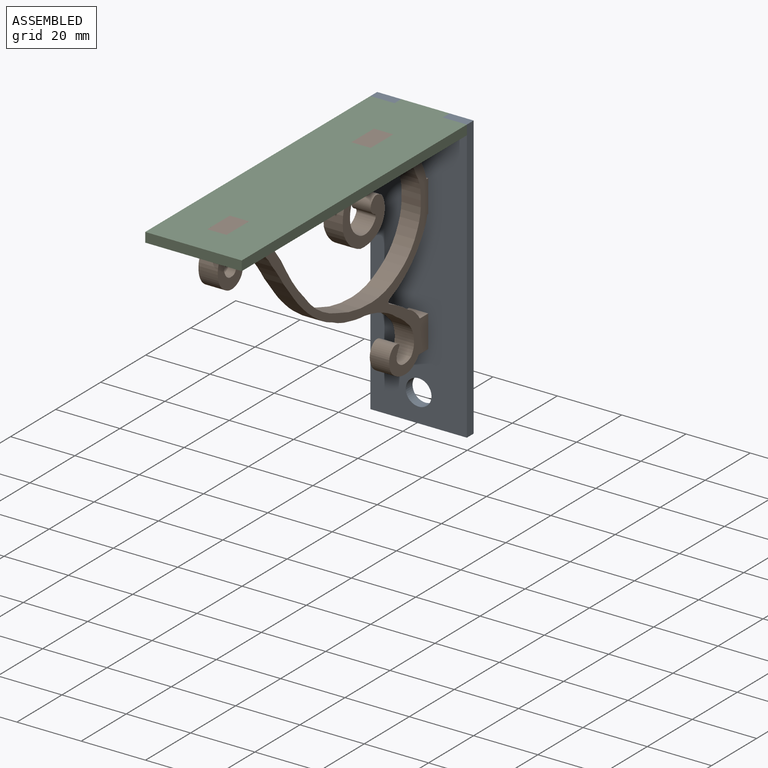
[diagram: assembled view]
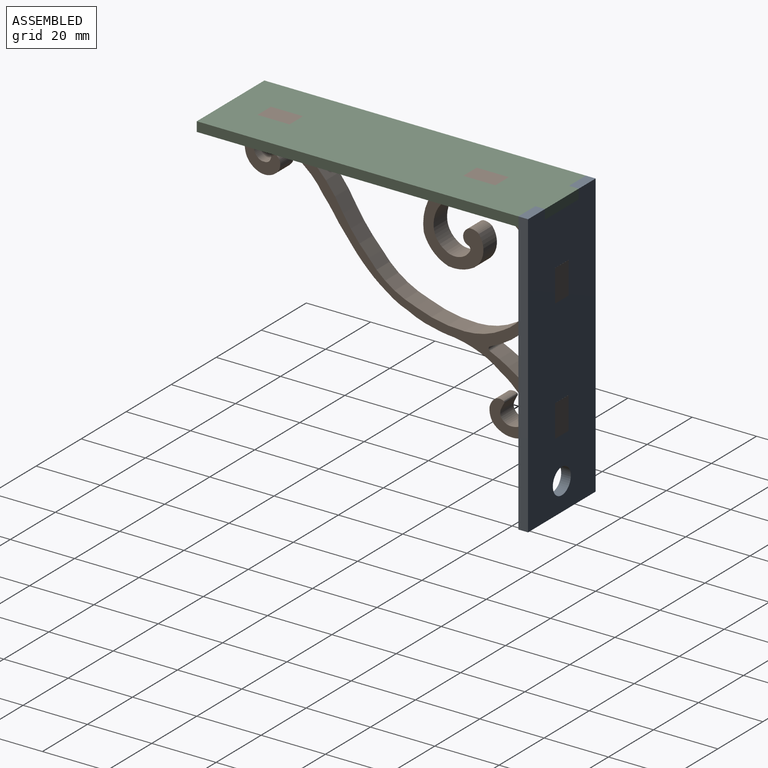
[diagram: assembled view, second angle]
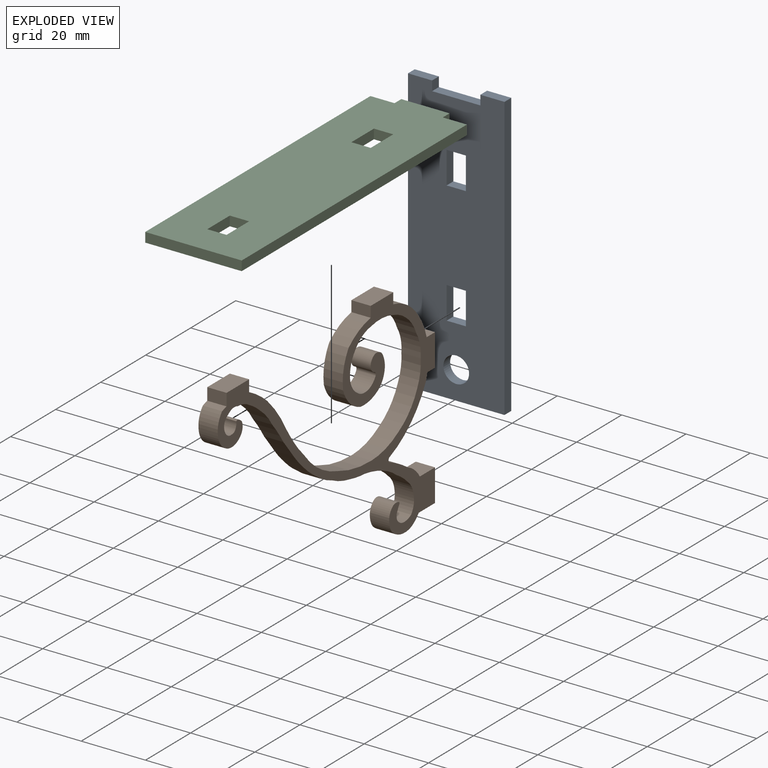
[diagram: exploded view]
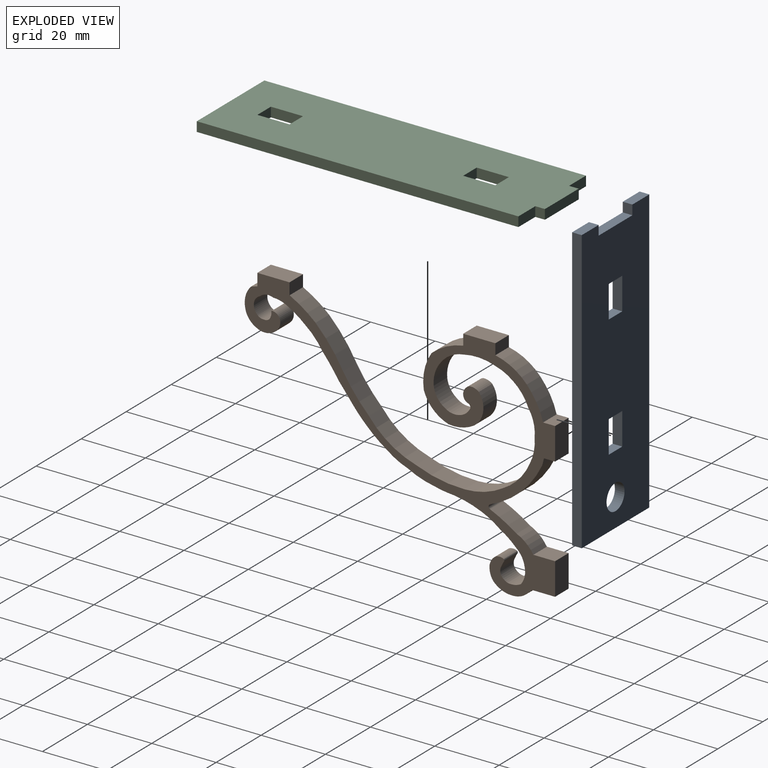
[diagram: exploded view, second angle]
ASSEMBLY  parts=3 mates=2
PART A: 19 faces, bbox 30x3x88 mm
  f0: plane 6x3mm, normal (0,0,-1), area 18mm2, adj f1,f16,f17,f18
  f1: plane 10x3mm, normal (-1,0,0), area 30mm2, adj f0,f2,f17,f18
  f2: plane 6x3mm, normal (0,0,1), area 18mm2, adj f1,f16,f17,f18
  f3: plane 10x3mm, normal (-1,0,0), area 30mm2, adj f4,f14,f17,f18
  f4: plane 6x3mm, normal (0,0,1), area 18mm2, adj f3,f5,f17,f18
  f5: plane 10x3mm, normal (1,0,0), area 30mm2, adj f4,f14,f17,f18
  f6: plane 88x3mm, normal (-1,0,0), area 264mm2, adj f7,f15,f17,f18
  f7: plane 30x3mm, normal (0,0,-1), area 90mm2, adj f6,f8,f17,f18
  f8: plane 88x3mm, normal (1,0,0), area 264mm2, adj f7,f9,f17,f18
  f9: plane 7.5x3mm, normal (0,0,1), area 22.5mm2, adj f8,f10,f17,f18
  f10: plane 3x3mm, normal (-1,0,0), area 9mm2, adj f9,f11,f17,f18
  f11: plane 15x3mm, normal (0,0,1), area 45mm2, adj f10,f12,f17,f18
  f12: plane 3x3mm, normal (1,0,0), area 9mm2, adj f11,f15,f17,f18
  f13: cylinder r=4mm len=8mm, axis (0,1,0), area 75.4mm2, adj f17,f18
  f14: plane 6x3mm, normal (0,0,-1), area 18mm2, adj f3,f5,f17,f18
  f15: plane 7.5x3mm, normal (0,0,1), area 22.5mm2, adj f6,f12,f17,f18
  f16: plane 10x3mm, normal (1,0,0), area 30mm2, adj f0,f2,f17,f18
  f17: plane 88x30mm, normal (0,-1,0), area 2424.7mm2, adj f0,f1,f2,f3,f4,f5,f6,f7
  f18: plane 88x30mm, normal (0,1,0), area 2424.7mm2, adj f0,f1,f2,f3,f4,f5,f6,f7
PART B: 87 faces, bbox 96.5x6x69.5 mm
  f0: cylinder r=3.02mm len=6mm, axis (0,1,0), area 20mm2, adj f1,f84,f85,f86
  f1: cylinder r=3.58mm len=6mm, axis (0,1,0), area 17.4mm2, adj f0,f2,f85,f86
  f2: cylinder r=2.53mm len=6mm, axis (0,1,0), area 15.6mm2, adj f1,f3,f85,f86
  f3: cylinder r=1.84mm len=6mm, axis (0,1,0), area 15.2mm2, adj f2,f4,f85,f86
  f4: cylinder r=2.82mm len=6mm, axis (0,1,0), area 10.2mm2, adj f3,f5,f85,f86
  f5: cylinder r=0.4mm len=6mm, axis (0,1,0), area 3.6mm2, adj f4,f6,f85,f86
  f6: cylinder r=2.93mm len=6mm, axis (0,1,0), area 15.1mm2, adj f5,f7,f85,f86
  f7: cylinder r=3.36mm len=6mm, axis (0,1,0), area 21.8mm2, adj f6,f8,f85,f86
  f8: cylinder r=5.3mm len=6.89mm, axis (0,1,0), area 45.8mm2, adj f7,f9,f85,f86
  f9: cylinder r=6.26mm len=6mm, axis (0,1,0), area 35.3mm2, adj f8,f10,f85,f86
  f10: cylinder r=7.24mm len=6.37mm, axis (0,1,0), area 41.3mm2, adj f9,f11,f85,f86
  f11: cylinder r=25.53mm len=6mm, axis (0,1,0), area 12.5mm2, adj f10,f12,f85,f86
  f12: plane 6x3.81mm, normal (1,0,0), area 22.9mm2, adj f11,f13,f85,f86
  f13: plane 10x6mm, normal (0,0,1), area 60mm2, adj f12,f14,f85,f86
  f14: plane 6x3.63mm, normal (-1,0,0), area 21.8mm2, adj f13,f15,f85,f86
  f15: cylinder r=35.56mm len=8.1mm, axis (0,1,0), area 59.2mm2, adj f14,f16,f85,f86
  f16: cylinder r=48.89mm len=11.32mm, axis (0,1,0), area 85.3mm2, adj f15,f17,f85,f86
  f17: cylinder r=54.44mm len=10.42mm, axis (0,1,0), area 79.2mm2, adj f16,f18,f85,f86
  f18: cylinder r=28.11mm len=14.51mm, axis (0,1,0), area 106.9mm2, adj f17,f19,f85,f86
  f19: cylinder r=38.96mm len=15.18mm, axis (0,1,0), area 93.3mm2, adj f18,f20,f85,f86
  f20: cylinder r=22.97mm len=12.03mm, axis (0,1,0), area 76.2mm2, adj f19,f21,f85,f86
  f21: cylinder r=19.05mm len=9.14mm, axis (0,1,0), area 75.6mm2, adj f20,f22,f85,f86
  f22: cylinder r=14.69mm len=7.71mm, axis (0,1,0), area 47.7mm2, adj f21,f23,f85,f86
  f23: cylinder r=12.14mm len=7.84mm, axis (0,1,0), area 49.5mm2, adj f22,f24,f85,f86
  f24: cylinder r=14.36mm len=6.19mm, axis (0,1,0), area 47.1mm2, adj f23,f25,f85,f86
  f25: cylinder r=14.33mm len=6mm, axis (0,1,0), area 37.7mm2, adj f24,f26,f85,f86
  f26: cylinder r=17.55mm len=9.97mm, axis (0,1,0), area 60.7mm2, adj f25,f27,f85,f86
  f27: cylinder r=10.2mm len=6.97mm, axis (0,1,0), area 49.8mm2, adj f26,f28,f85,f86
  f28: cylinder r=9.82mm len=7.17mm, axis (0,1,0), area 46.3mm2, adj f27,f29,f85,f86
  f29: cylinder r=7.02mm len=6mm, axis (0,1,0), area 38.2mm2, adj f28,f30,f85,f86
  f30: cylinder r=5.29mm len=6mm, axis (0,1,0), area 28mm2, adj f29,f31,f85,f86
  f31: cylinder r=5.18mm len=6mm, axis (0,1,0), area 28mm2, adj f30,f32,f85,f86
  f32: cylinder r=0.97mm len=6mm, axis (0,1,0), area 9.1mm2, adj f31,f33,f85,f86
  f33: cylinder r=2.74mm len=6mm, axis (0,1,0), area 9.9mm2, adj f32,f34,f85,f86
  f34: cylinder r=2.65mm len=6mm, axis (0,1,0), area 15.6mm2, adj f33,f35,f85,f86
  f35: cylinder r=3.19mm len=6mm, axis (0,1,0), area 14.7mm2, adj f34,f36,f85,f86
  f36: cylinder r=3.98mm len=6mm, axis (0,1,0), area 18.3mm2, adj f35,f37,f85,f86
  f37: cylinder r=6.9mm len=9.84mm, axis (0,1,0), area 66.7mm2, adj f36,f38,f85,f86
  f38: cylinder r=11.76mm len=7.99mm, axis (0,1,0), area 50.1mm2, adj f37,f39,f85,f86
  f39: cylinder r=11.64mm len=7.66mm, axis (0,1,0), area 67.2mm2, adj f38,f40,f85,f86
  f40: cylinder r=15.7mm len=11mm, axis (0,1,0), area 69.2mm2, adj f39,f41,f85,f86
  f41: cylinder r=19.43mm len=9.83mm, axis (0,1,0), area 66.3mm2, adj f40,f42,f85,f86
  f42: plane 6x3.35mm, normal (1,0,0), area 20.1mm2, adj f41,f43,f85,f86
  f43: plane 10x6mm, normal (0,0,1), area 60mm2, adj f42,f44,f85,f86
  f44: plane 6x3.37mm, normal (-1,0,0), area 20.2mm2, adj f43,f45,f85,f86
  f45: cylinder r=18.04mm len=11.2mm, axis (0,1,0), area 82.5mm2, adj f44,f46,f85,f86
  f46: cylinder r=21.74mm len=7.52mm, axis (0,1,0), area 50.5mm2, adj f45,f47,f85,f86
  f47: plane 6x3.72mm, normal (0,0,1), area 22.3mm2, adj f46,f48,f85,f86
  f48: plane 10x6mm, normal (-1,0,0), area 60mm2, adj f47,f49,f85,f86
  f49: plane 6x3.46mm, normal (0,0,-1), area 20.7mm2, adj f48,f50,f85,f86
  f50: cylinder r=21.74mm len=6mm, axis (0,1,0), area 14mm2, adj f49,f51,f85,f86
  f51: cylinder r=30.22mm len=16.17mm, axis (0,1,0), area 136.2mm2, adj f50,f52,f85,f86
  f52: cylinder r=0.77mm len=6mm, axis (0,1,0), area 10.3mm2, adj f51,f53,f85,f86
  f53: cylinder r=46.53mm len=8.26mm, axis (0,1,0), area 57mm2, adj f52,f54,f85,f86
  f54: cylinder r=11.56mm len=6mm, axis (0,1,0), area 42.1mm2, adj f53,f55,f85,f86
  f55: plane 6.76x6mm, normal (0,0,1), area 40.5mm2, adj f54,f56,f85,f86
  f56: plane 10x6mm, normal (-1,0,0), area 60mm2, adj f55,f57,f85,f86
  f57: plane 7.24x6mm, normal (0,0,-1), area 43.5mm2, adj f56,f58,f85,f86
  f58: cylinder r=8.72mm len=6mm, axis (0,1,0), area 13.3mm2, adj f57,f59,f85,f86
  f59: cylinder r=6.6mm len=6mm, axis (0,1,0), area 30mm2, adj f58,f60,f85,f86
  f60: cylinder r=7.92mm len=6mm, axis (0,1,0), area 38.1mm2, adj f59,f61,f85,f86
  f61: cylinder r=6mm len=6mm, axis (0,1,0), area 27.9mm2, adj f60,f62,f85,f86
  f62: cylinder r=4.49mm len=6mm, axis (0,1,0), area 20.8mm2, adj f61,f63,f85,f86
  f63: cylinder r=2.82mm len=6mm, axis (0,1,0), area 16.1mm2, adj f62,f64,f85,f86
  f64: cylinder r=0.59mm len=6mm, axis (0,1,0), area 5.3mm2, adj f63,f65,f85,f86
  f65: cylinder r=4.56mm len=6mm, axis (0,1,0), area 7.8mm2, adj f64,f66,f85,f86
  f66: cylinder r=2.98mm len=6mm, axis (0,1,0), area 17.1mm2, adj f65,f67,f85,f86
  f67: cylinder r=3.93mm len=6mm, axis (0,1,0), area 16.4mm2, adj f66,f68,f85,f86
  f68: cylinder r=5.7mm len=6mm, axis (0,1,0), area 26.1mm2, adj f67,f69,f85,f86
  f69: cylinder r=5.96mm len=6mm, axis (0,1,0), area 31.6mm2, adj f68,f70,f85,f86
  f70: cylinder r=7.36mm len=6mm, axis (0,1,0), area 33.7mm2, adj f69,f71,f85,f86
  f71: cylinder r=23.86mm len=6mm, axis (0,1,0), area 38.9mm2, adj f70,f72,f85,f86
  f72: cylinder r=22.67mm len=6mm, axis (0,1,0), area 39.2mm2, adj f71,f73,f85,f86
  f73: cylinder r=33.27mm len=8.48mm, axis (0,1,0), area 52.9mm2, adj f72,f74,f85,f86
  f74: cylinder r=33.41mm len=6.47mm, axis (0,1,0), area 39.3mm2, adj f73,f75,f85,f86
  f75: cylinder r=26.21mm len=7.96mm, axis (0,1,0), area 50.7mm2, adj f74,f76,f85,f86
  f76: cylinder r=21.95mm len=6.73mm, axis (0,1,0), area 46.1mm2, adj f75,f77,f85,f86
  f77: cylinder r=35.97mm len=6mm, axis (0,1,0), area 45mm2, adj f76,f78,f85,f86
  f78: cylinder r=45.38mm len=6mm, axis (0,1,0), area 39.4mm2, adj f77,f79,f85,f86
  f79: cylinder r=372mm len=6mm, axis (0,1,0), area 45mm2, adj f78,f80,f85,f86
  f80: cylinder r=61.07mm len=6.73mm, axis (0,1,0), area 50.1mm2, adj f79,f81,f85,f86
  f81: cylinder r=22.76mm len=6.25mm, axis (0,1,0), area 50.8mm2, adj f80,f82,f85,f86
  f82: cylinder r=24.57mm len=6mm, axis (0,1,0), area 35mm2, adj f81,f83,f85,f86
  f83: cylinder r=9.11mm len=6mm, axis (0,1,0), area 31.6mm2, adj f82,f84,f85,f86
  f84: cylinder r=3.91mm len=6mm, axis (0,1,0), area 27.1mm2, adj f0,f83,f85,f86
  f85: plane 96.52x69.5mm, normal (0,-1,0), area 949.6mm2, adj f0,f1,f2,f3,f4,f5,f6,f7
  f86: plane 96.52x69.5mm, normal (0,1,0), area 949.6mm2, adj f0,f1,f2,f3,f4,f5,f6,f7
PART C: 18 faces, bbox 30x3x103 mm
  f0: plane 6x3mm, normal (0,0,-1), area 18mm2, adj f1,f15,f16,f17
  f1: plane 10x3mm, normal (-1,0,0), area 30mm2, adj f0,f2,f16,f17
  f2: plane 6x3mm, normal (0,0,1), area 18mm2, adj f1,f15,f16,f17
  f3: plane 10x3mm, normal (-1,0,0), area 30mm2, adj f4,f13,f16,f17
  f4: plane 6x3mm, normal (0,0,1), area 18mm2, adj f3,f5,f16,f17
  f5: plane 10x3mm, normal (1,0,0), area 30mm2, adj f4,f13,f16,f17
  f6: plane 7.5x3mm, normal (0,0,1), area 22.5mm2, adj f7,f14,f16,f17
  f7: plane 100x3mm, normal (-1,0,0), area 300mm2, adj f6,f8,f16,f17
  f8: plane 30x3mm, normal (0,0,-1), area 90mm2, adj f7,f9,f16,f17
  f9: plane 100x3mm, normal (1,0,0), area 300mm2, adj f8,f10,f16,f17
  f10: plane 7.5x3mm, normal (0,0,1), area 22.5mm2, adj f9,f11,f16,f17
  f11: plane 3x3mm, normal (1,0,0), area 9mm2, adj f10,f12,f16,f17
  f12: plane 15x3mm, normal (0,0,1), area 45mm2, adj f11,f14,f16,f17
  f13: plane 6x3mm, normal (0,0,-1), area 18mm2, adj f3,f5,f16,f17
  f14: plane 3x3mm, normal (-1,0,0), area 9mm2, adj f6,f12,f16,f17
  f15: plane 10x3mm, normal (1,0,0), area 30mm2, adj f0,f2,f16,f17
  f16: plane 103x30mm, normal (0,-1,0), area 2925mm2, adj f0,f1,f2,f3,f4,f5,f6,f7
  f17: plane 103x30mm, normal (0,1,0), area 2925mm2, adj f0,f1,f2,f3,f4,f5,f6,f7
PLACE A at identity
PLACE B rot(axis=(0,0,-1),90deg) t=(18,-112.33,-8.83)mm
PLACE C rot(axis=(-1,0,0),90deg) t=(0,-103,85)mm
MATE fastened C.f11 <-> A.f10  axis (1,0,0) through (22.5,-1.5,86.5)mm
MATE fastened B.f43 <-> C.f16  axis (0,0,1) through (15,-23.57,88)mm
